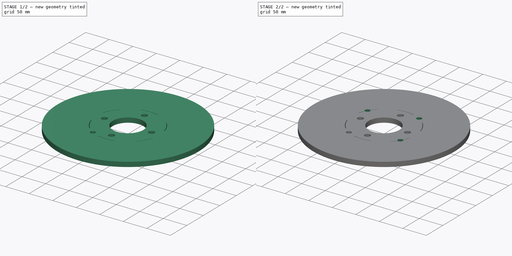
[diagram: build sequence overview — one tinted view per stage of 2, left to right]
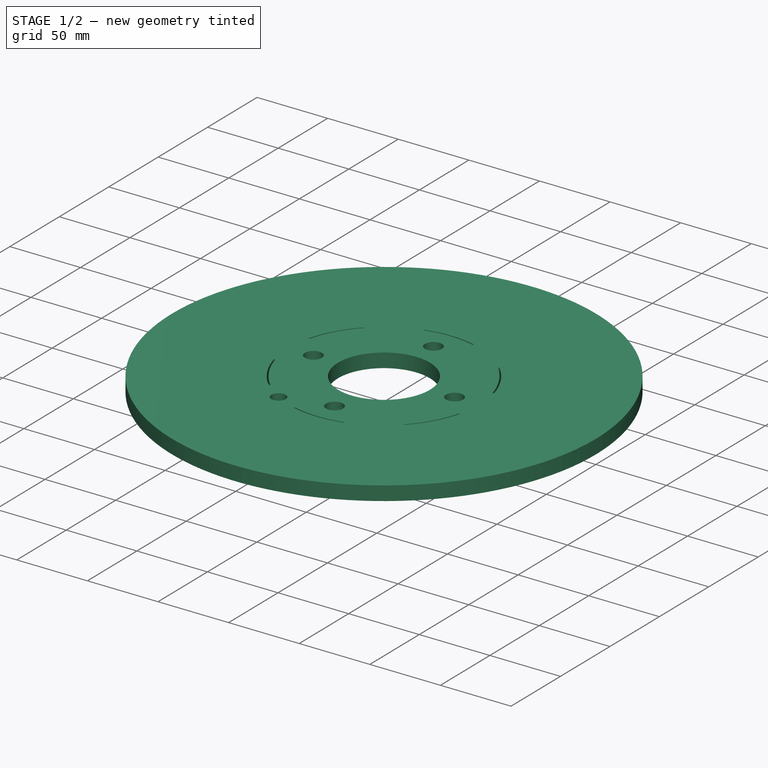
[diagram: stage 1 of 2 — iso view after this stage's code; geometry added in this stage tinted green]
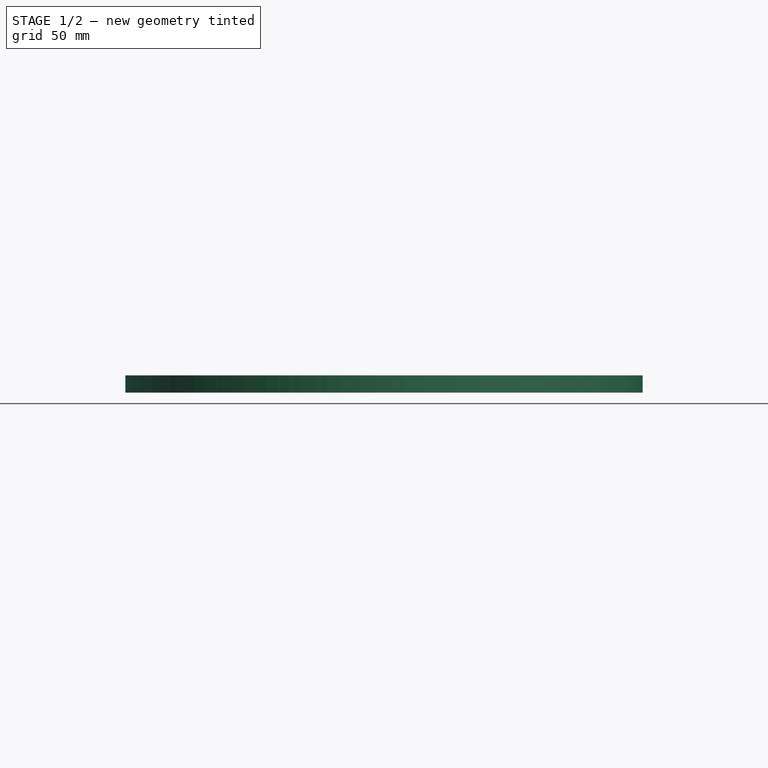
[diagram: stage 1 of 2 — front view after this stage's code; geometry added in this stage tinted green]
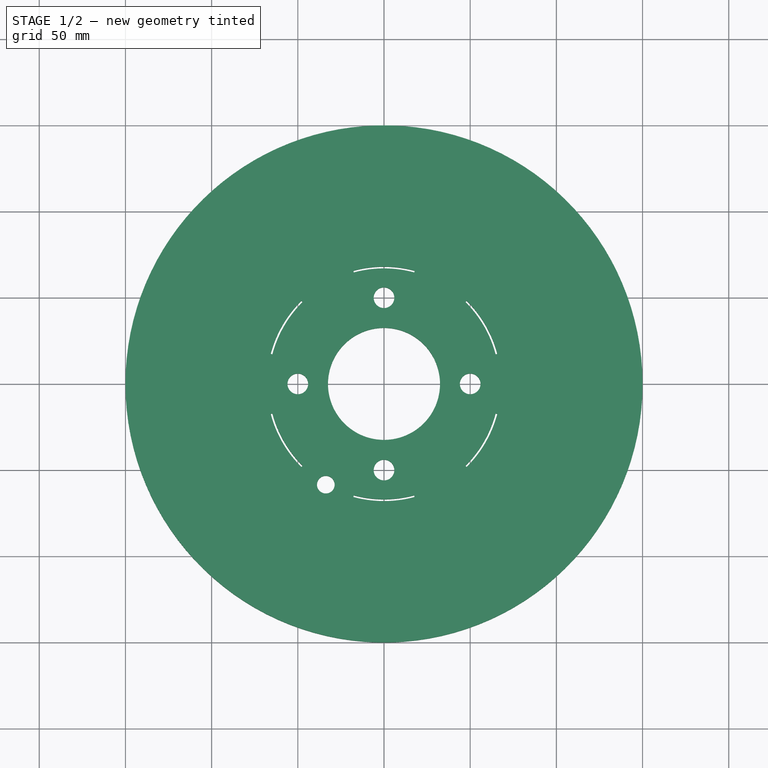
[diagram: stage 1 of 2 — top view after this stage's code; geometry added in this stage tinted green]
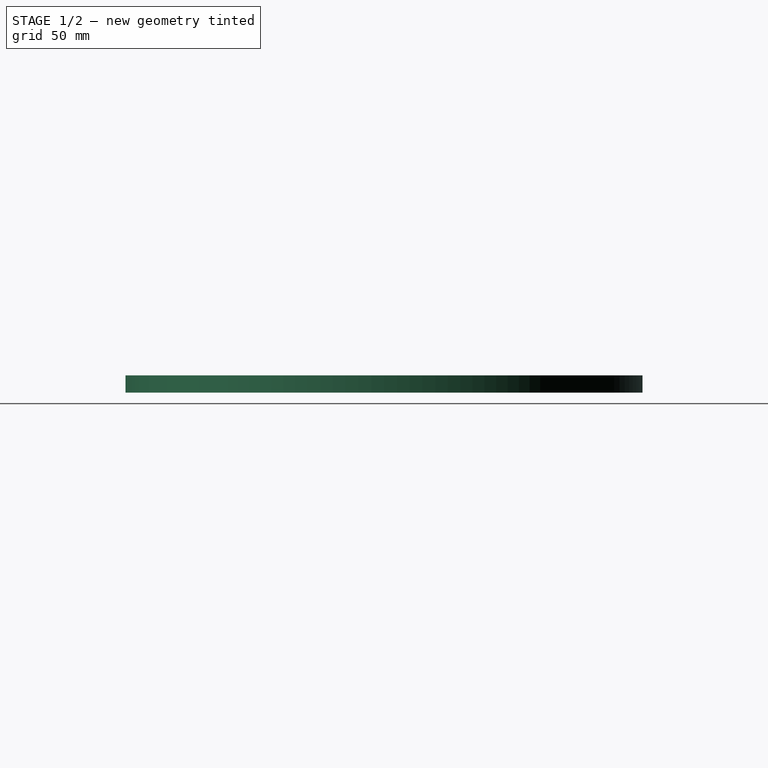
[diagram: stage 1 of 2 — right view after this stage's code; geometry added in this stage tinted green]
FCSTD DOCUMENT  (FreeCAD 0.21R33771 (Git))
Label: Rotor_Disk_Front_ReducedWeight
License: All rights reserved
LicenseURL: http://en.wikipedia.org/wiki/All_rights_reserved
objects: Spreadsheet::Sheet×1, App::Link×1, PartDesign::SubShapeBinder×1, Sketcher::SketchObject×1, PartDesign::FeatureBase×1, PartDesign::Pocket×1, PartDesign::PolarPattern×1, PartDesign::Body×1
note: 7 computed .brp shape members not serialized (recipe doc carries the construction recipe); baked Part::Feature solids carry a one-line shape summary decoded from their .brp
EXTERNAL_REF file=../../Master_of_Puppets.FCStd obj=Alternator
EXTERNAL_REF file=Rotor_Disk_Back_ReducedWeight.FCStd obj=Body

FEATURE [Spreadsheet::Sheet] Spreadsheet
  cells = A1='Inputs; A2='Alternator; A3='NumberOfJackingHoles; B3(NumberOfJackingHoles)==Master_of_Puppets#Alternator.NumberOfJackingHoles; A4='JackingHoleDiameter; B4(JackingHoleDiameter)==Master_of_Puppets#Alternator.JackingHoleDiameter; A5='PocketInnerRadius; B5(PocketInnerRadius)==Master_of_Puppets#Alternator.PocketInnerRadius; A6='PocketOuterRadius; B6(PocketOuterRadius)==Master_of_Puppets#Alternator.PocketOuterRadius; A7='Calculated; A8='JackingHoleRadius; B8(JackingHoleRadius)==JackingHoleDiameter / 2; A9='RadiusSmallHoles; B9(RadiusSmallHoles)==(PocketOuterRadius - PocketInnerRadius) / 2 + PocketInnerRadius
FEATURE [App::Link] Link  label="Rotor_Disk_Back_ReducedWeight"
  LinkedObject = -> <external Rotor_Disk_Back_ReducedWeight.FCStd>#Body
FEATURE [PartDesign::SubShapeBinder] Binder
  BindCopyOnChange = 0
  BindMode = 0
  ClaimChildren = false
  Context = -> Body001 [Binder.]
  Fuse = false
  MakeFace = true
  OffsetFill = false
  OffsetIntersection = false
  OffsetJoinType = 0
  OffsetOpenResult = false
  PartialLoad = false
  Refine = true
  Relative = true
  Support = -> [Link]
  _Version = 2
FEATURE [Sketcher::SketchObject] Sketch003  label="JackingHoleSketch"
  FullyConstrained = true
  MapMode = 5
  Placement = pos=(0,0,0) rot=(1,0,0;3.14159rad)
  expr: Constraints[2] = Spreadsheet.RadiusSmallHoles
  expr: Constraints[3] = Spreadsheet.JackingHoleRadius
  sketch-geometry (2):
    g0: Circle CenterX=-33.75 CenterY=58.4567 CenterZ=0 NormalX=0 NormalY=0 NormalZ=1 AngleXU=0 Radius=5.125
    g1: LineSegment StartX=-33.75 StartY=58.4567 StartZ=0 EndX=0 EndY=0 EndZ=0
  constraints (5):
    c: Coincident(g1,g0)
    c: Coincident(g1,g-1)
    c: Distance(g1) = 67.5
    c: Radius(g0) = 5.125
    c: Angle(g-2,g1) = 0.523599
FEATURE [PartDesign::FeatureBase] BaseFeature001  label="BaseFeature"
  BaseFeature = -> Binder
FEATURE [PartDesign::Pocket] Pocket
  BaseFeature = -> BaseFeature001
  Direction = (0,0,1)
  Length = 5
  Length2 = 100
  Profile = -> Sketch003
  Type = 1
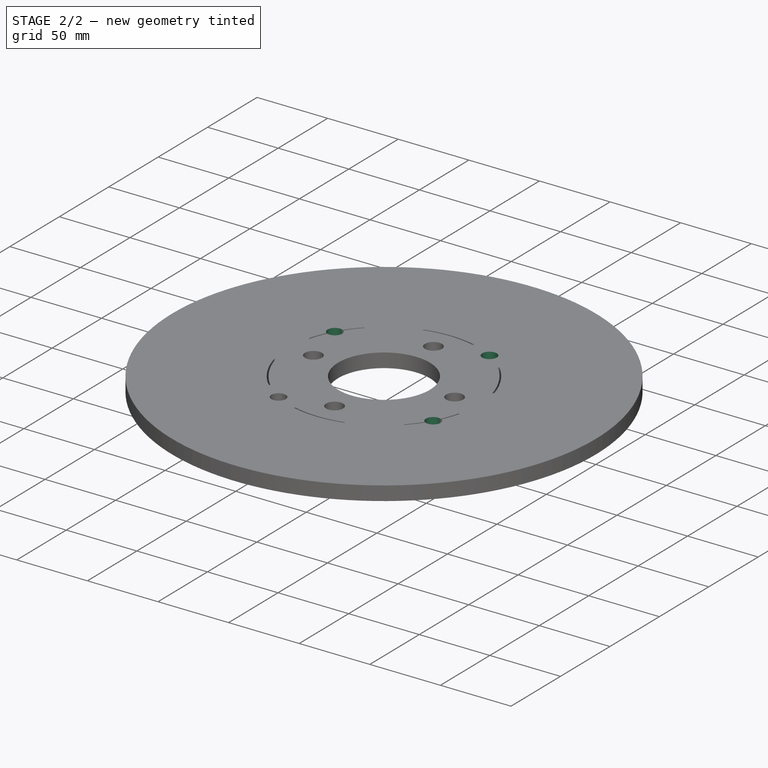
[diagram: stage 2 of 2 — iso view after this stage's code; geometry added in this stage tinted green]
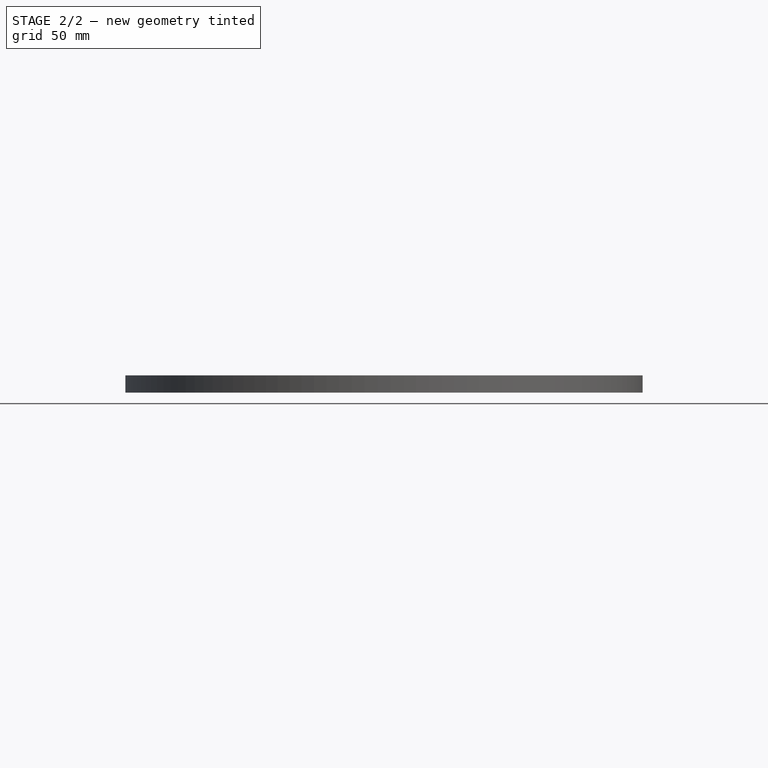
[diagram: stage 2 of 2 — front view after this stage's code; geometry added in this stage tinted green]
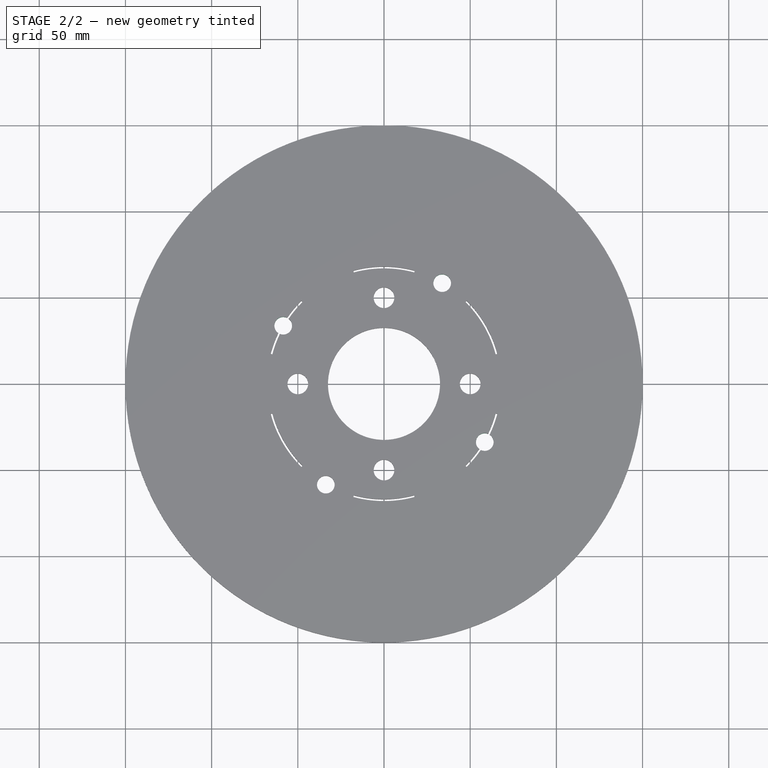
[diagram: stage 2 of 2 — top view after this stage's code; geometry added in this stage tinted green]
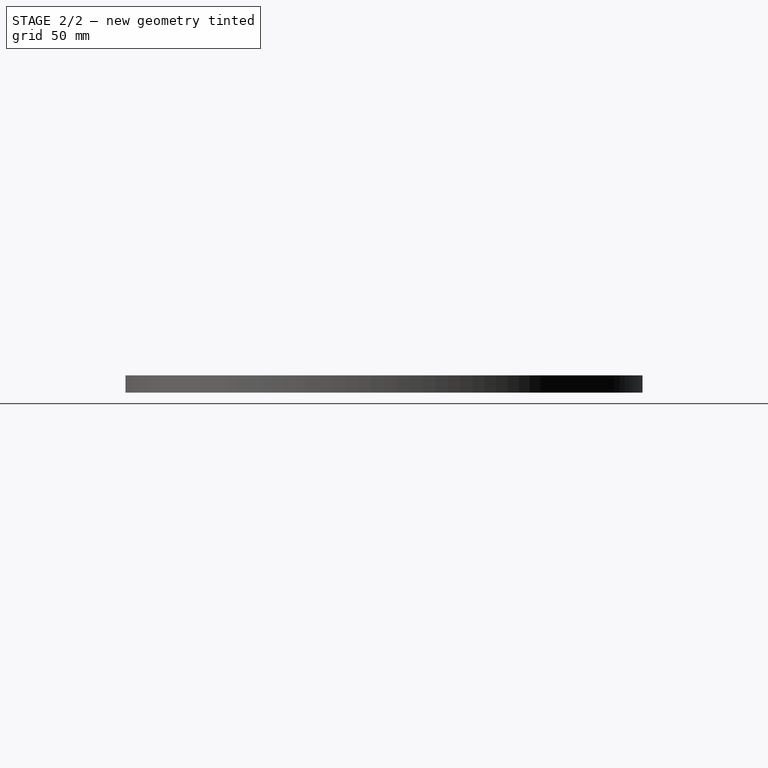
[diagram: stage 2 of 2 — right view after this stage's code; geometry added in this stage tinted green]
FEATURE [PartDesign::PolarPattern] PolarPattern
  Angle = 360
  Axis = -> Sketch003 [N_Axis]
  BaseFeature = -> Pocket
  Occurrences = 4
  Originals = -> [Pocket]
  expr: Occurrences = Spreadsheet.NumberOfJackingHoles
FEATURE [PartDesign::Body] Body001  label="Rotor_Disk_Front"
  BaseFeature = -> Binder
  Group = -> [BaseFeature001,Binder,Sketch003,Pocket,PolarPattern]
  Openafpm_Flat = true
  Origin = -> Origin001
  Tip = -> PolarPattern
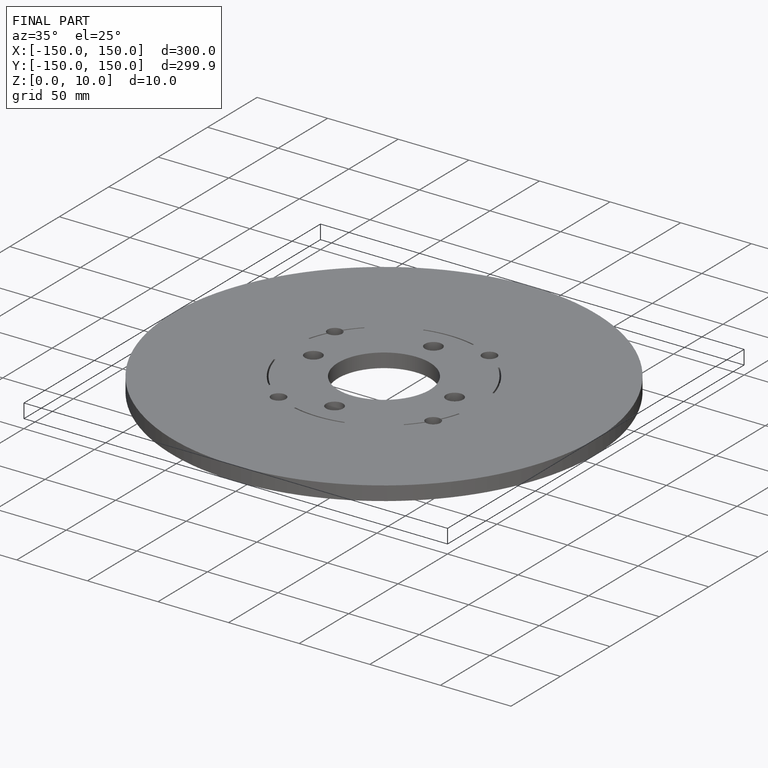
[diagram: finished part — iso view with bounding-box wireframe]
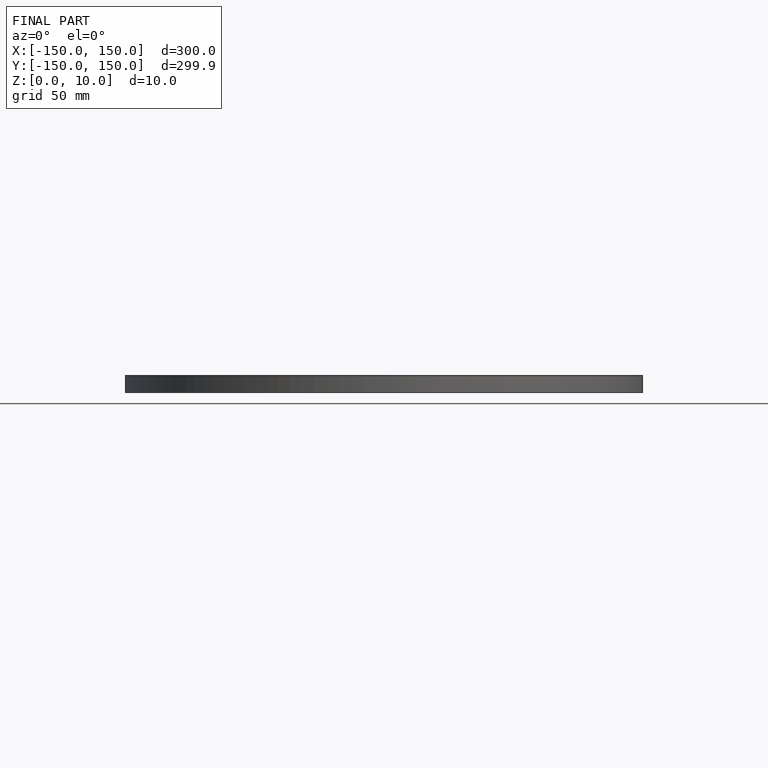
[diagram: finished part — front view with bounding-box wireframe]
